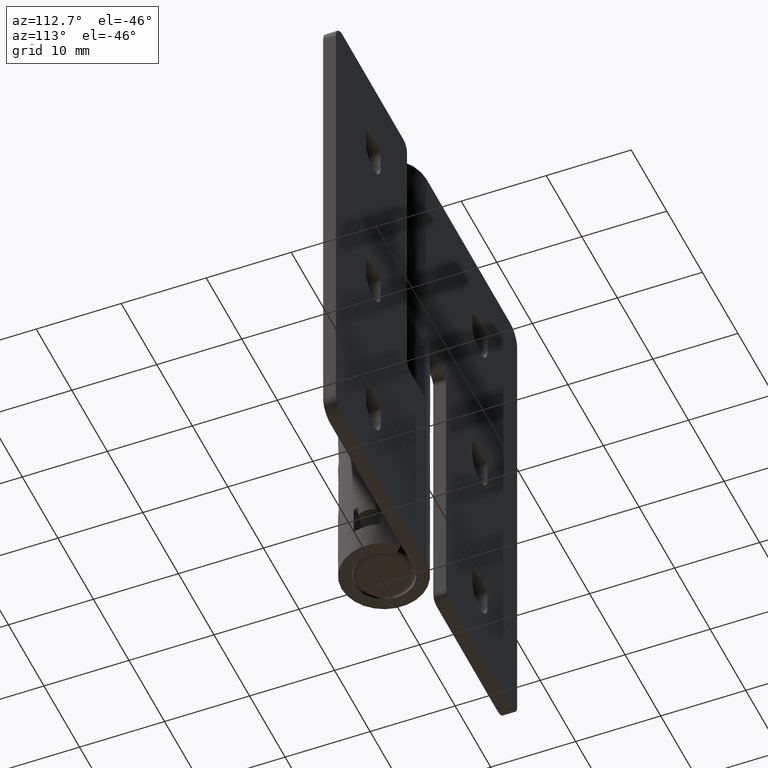
[diagram: clean part render]
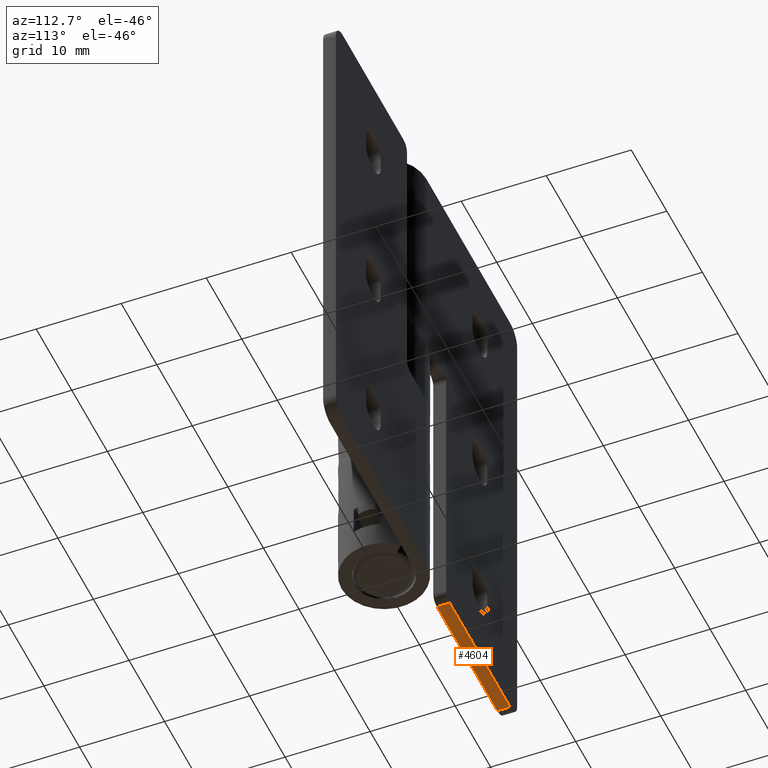
[diagram: same view with one face highlighted and labeled with its STEP entity id]
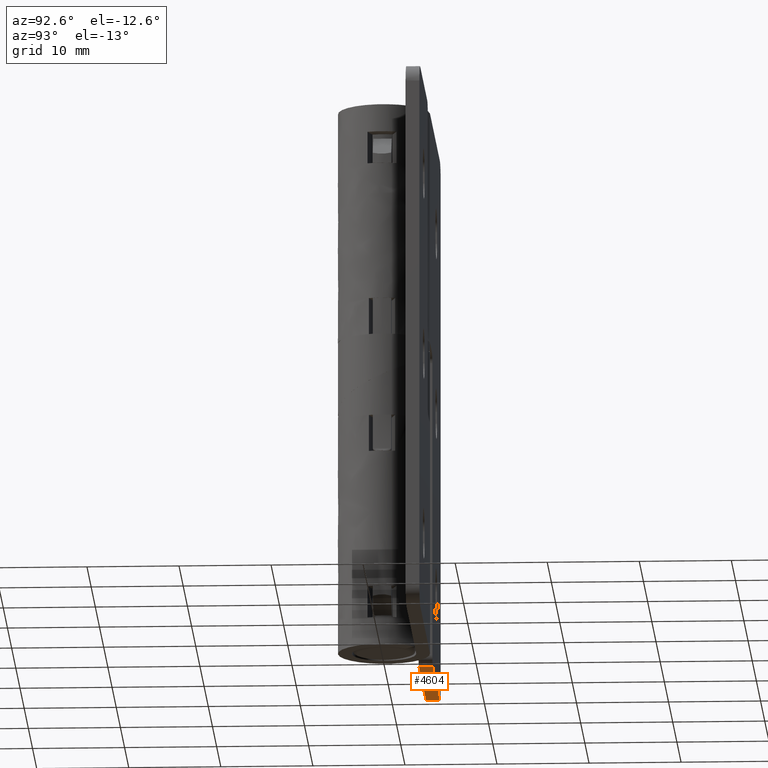
[diagram: same view with one face highlighted and labeled with its STEP entity id]
A machine part, auxiliary view. The second image highlights one B-rep face of the part: STEP entity #4604.
A second angle (auxiliary view) of the same face is appended — the face is thin or edge-on in the first view.
In plain terms, the highlighted face is a freeform B-spline surface patch.
Its self-contained STEP definition (entity closure, byte-faithful):
#1312=CARTESIAN_POINT('',(-23.500000984656101,3.500001000000000,0.000000891953252));
#1313=VERTEX_POINT('',#1312);
#1327=CARTESIAN_POINT('',(-6.499999984656120,3.500001000000000,0.000000970114710));
#1328=VERTEX_POINT('',#1327);
#1329=CARTESIAN_POINT('',(-23.500000984656101,3.500001000000000,0.000000891953252));
#1330=CARTESIAN_POINT('',(-6.499999984656120,3.500001000000000,0.000000970114710));
#1331=QUASI_UNIFORM_CURVE('',1,(#1329,#1330),.UNSPECIFIED.,.F.,.U.);
#1332=EDGE_CURVE('',#1313,#1328,#1331,.T.);
#3944=CARTESIAN_POINT('',(-23.500000984656101,5.000000999999999,0.000000891953252));
#3945=VERTEX_POINT('',#3944);
#3959=CARTESIAN_POINT('',(-23.500000984656101,5.000000999999999,0.000000891953252));
#3960=CARTESIAN_POINT('',(-23.500000984656101,3.500001000000000,0.000000891953252));
#3961=QUASI_UNIFORM_CURVE('',1,(#3959,#3960),.UNSPECIFIED.,.F.,.U.);
#3962=EDGE_CURVE('',#3945,#1313,#3961,.T.);
#4033=CARTESIAN_POINT('',(-6.499999984656120,5.000000999999999,0.000000970114710));
#4034=VERTEX_POINT('',#4033);
#4035=CARTESIAN_POINT('',(-6.499999984656120,3.500001000000000,0.000000970114710));
#4036=CARTESIAN_POINT('',(-6.499999984656120,5.000000999999999,0.000000970114710));
#4037=QUASI_UNIFORM_CURVE('',1,(#4035,#4036),.UNSPECIFIED.,.F.,.U.);
#4038=EDGE_CURVE('',#1328,#4034,#4037,.T.);
#4589=CARTESIAN_POINT('',(-5.650849967655420,3.425076002907291,0.000000974018915));
#4590=CARTESIAN_POINT('',(-24.349151457632360,3.425076002907291,0.000000888049125));
#4591=CARTESIAN_POINT('',(-5.650849967655420,5.074926037325843,0.000000974018915));
#4592=CARTESIAN_POINT('',(-24.349151457632360,5.074926037325843,0.000000888049125));
#4593=B_SPLINE_SURFACE_WITH_KNOTS('',1,1,((#4589,#4591),(#4590,#4592)),.UNSPECIFIED.,.F.,.F.,.U.,(2,2),(2,2),(0.0,18.698301489976942),(0.041708334948495,0.958291687403247),.UNSPECIFIED.);
#4594=CARTESIAN_POINT('',(-6.499999984656120,5.000000999999999,0.000000970114710));
#4595=CARTESIAN_POINT('',(-23.500000984656101,5.000000999999999,0.000000891953252));
#4596=QUASI_UNIFORM_CURVE('',1,(#4594,#4595),.UNSPECIFIED.,.F.,.U.);
#4597=EDGE_CURVE('',#4034,#3945,#4596,.T.);
#4598=ORIENTED_EDGE('',*,*,#4597,.F.);
#4599=ORIENTED_EDGE('',*,*,#4038,.F.);
#4600=ORIENTED_EDGE('',*,*,#1332,.F.);
#4601=ORIENTED_EDGE('',*,*,#3962,.F.);
#4602=EDGE_LOOP('',(#4598,#4599,#4600,#4601));
#4603=FACE_OUTER_BOUND('',#4602,.T.);
#4604=ADVANCED_FACE('',(#4603),#4593,.T.);